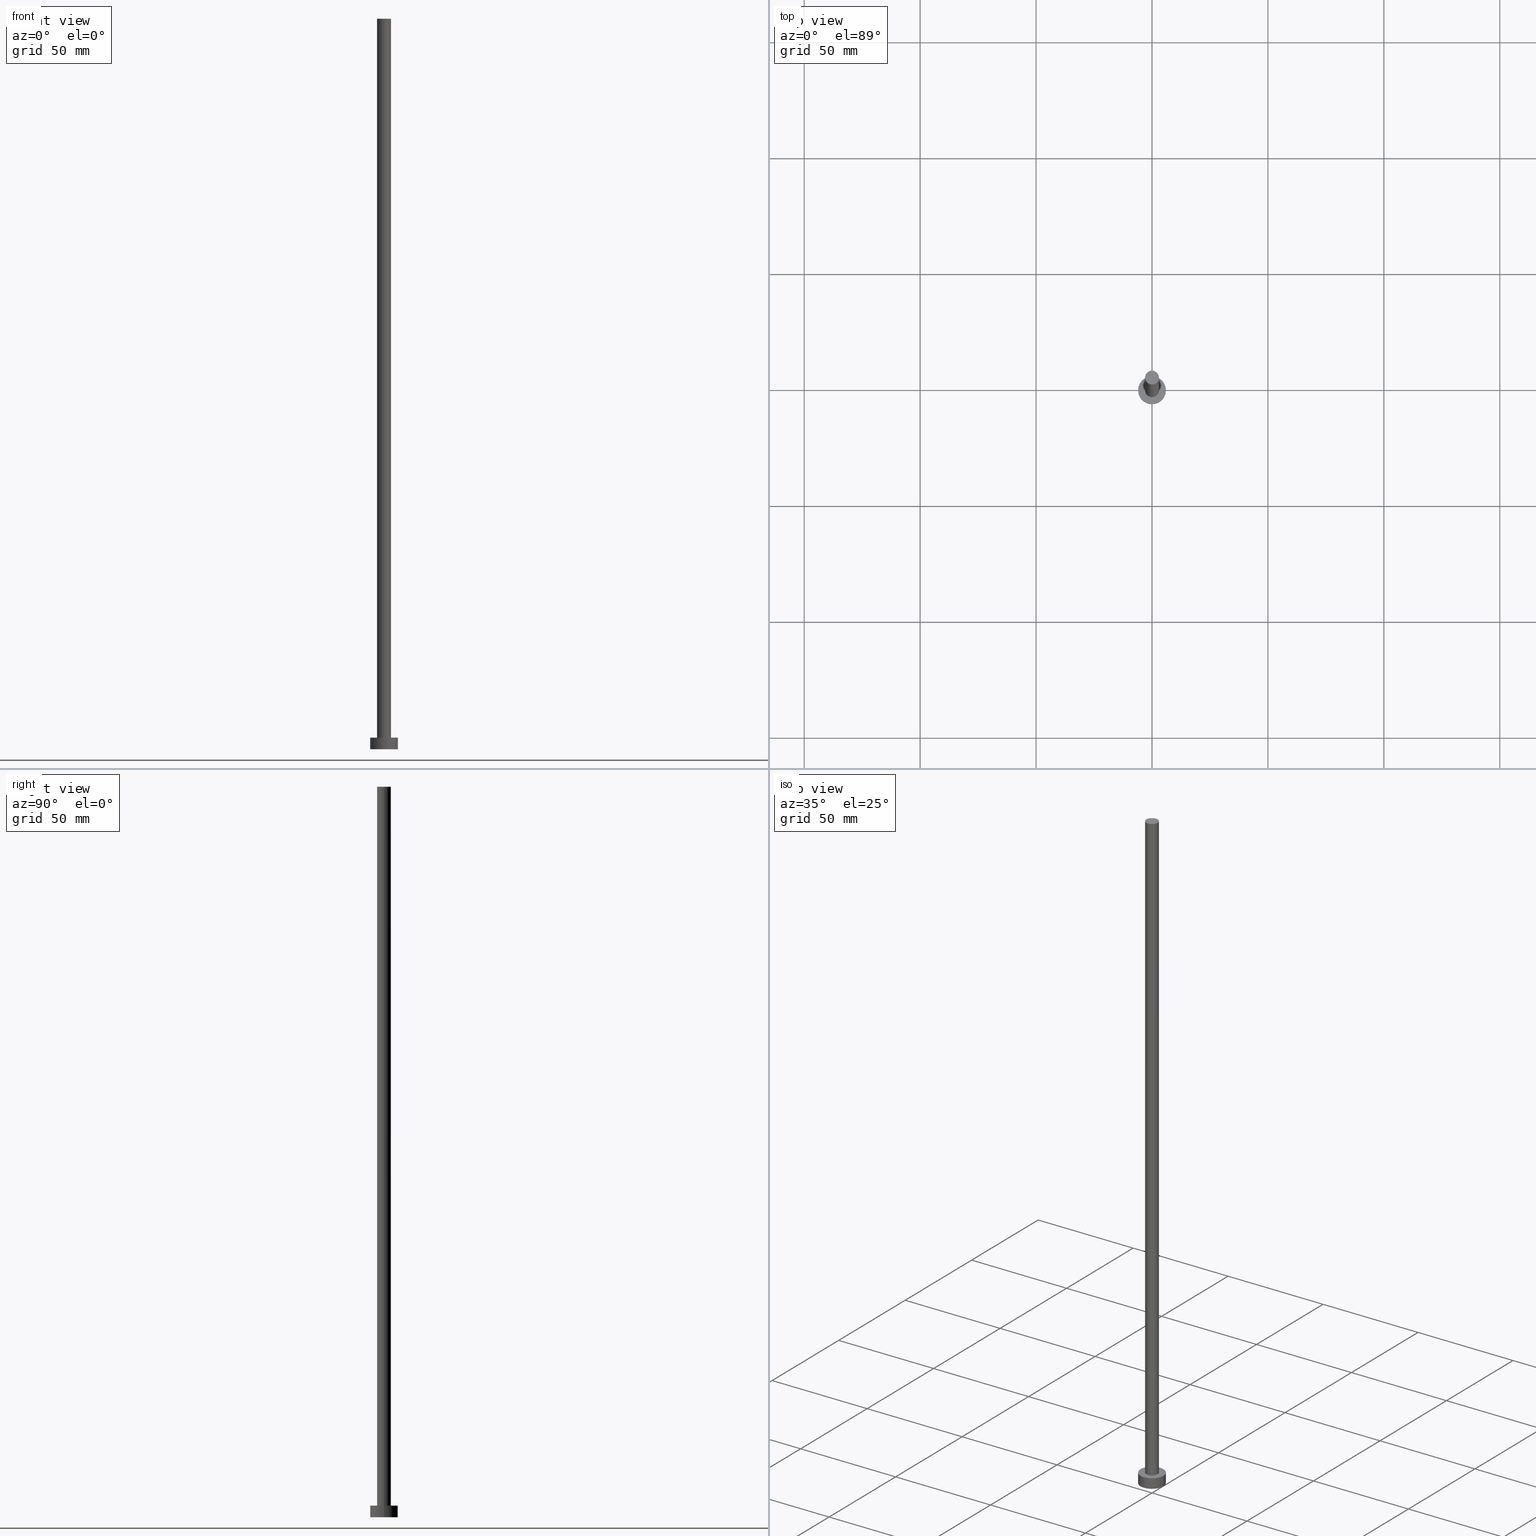
[diagram: canonical four-view strip — front | top / right | iso, engineering-drawing reading convention]
A machine part, canonical four-view strip (front | top / right | iso — engineering-drawing reading convention). The complete STEP part file that produces these views, byte-faithful:
ISO-10303-21;
HEADER;
FILE_DESCRIPTION (( 'STEP AP203' ),
    '1' );
FILE_NAME ('14d9.STEP',
    '2023-02-13T12:37:28',
    ( '' ),
    ( '' ),
    'SwSTEP 2.0',
    'SolidWorks 2019',
    '' );
FILE_SCHEMA (( 'CONFIG_CONTROL_DESIGN' ));
ENDSEC;

DATA;
#1 = ORIENTED_EDGE ( 'NONE', *, *, #44, .T. ) ;
#2 =( LENGTH_UNIT ( ) NAMED_UNIT ( * ) SI_UNIT ( .MILLI., .METRE. ) );
#3 = ORIENTED_EDGE ( 'NONE', *, *, #17, .T. ) ;
#4 = CIRCLE ( 'NONE', #82, 6.000000000000000888 ) ;
#5 = APPLICATION_CONTEXT ( 'configuration controlled 3d designs of mechanical parts and assemblies' ) ;
#6 = APPROVAL_DATE_TIME ( #27, #111 ) ;
#7 = CARTESIAN_POINT ( 'NONE',  ( -3.000000000000000444, 0.000000000000000000, 5.000000000000000000 ) ) ;
#8 = EDGE_CURVE ( 'NONE', #16, #132, #191, .T. ) ;
#9 = CC_DESIGN_APPROVAL ( #111, ( #60 ) ) ;
#10 = DIRECTION ( 'NONE',  ( 1.000000000000000000, 0.000000000000000000, 0.000000000000000000 ) ) ;
#11 = FACE_OUTER_BOUND ( 'NONE', #24, .T. ) ;
#12 = APPROVAL_DATE_TIME ( #176, #177 ) ;
#13 = APPROVAL_PERSON_ORGANIZATION ( #214, #111, #246 ) ;
#14 = EDGE_CURVE ( 'NONE', #224, #223, #4, .T. ) ;
#15 = LINE ( 'NONE', #49, #185 ) ;
#16 = VERTEX_POINT ( 'NONE', #87 ) ;
#17 = EDGE_CURVE ( 'NONE', #57, #223, #46, .T. ) ;
#18 = ORIENTED_EDGE ( 'NONE', *, *, #17, .F. ) ;
#19 = APPROVAL_ROLE ( '' ) ;
#20 = ORIENTED_EDGE ( 'NONE', *, *, #83, .T. ) ;
#21 = ORIENTED_EDGE ( 'NONE', *, *, #150, .T. ) ;
#22 = AXIS2_PLACEMENT_3D ( 'NONE', #253, #39, #77 ) ;
#23 = ADVANCED_FACE ( 'NONE', ( #241 ), #153, .F. ) ;
#24 = EDGE_LOOP ( 'NONE', ( #78, #20, #1, #208 ) ) ;
#25 = ORIENTED_EDGE ( 'NONE', *, *, #14, .T. ) ;
#26 = DIRECTION ( 'NONE',  ( 0.000000000000000000, 0.000000000000000000, 1.000000000000000000 ) ) ;
#27 = DATE_AND_TIME ( #229, #89 ) ;
#28 = DIRECTION ( 'NONE',  ( 0.000000000000000000, 0.000000000000000000, 1.000000000000000000 ) ) ;
#29 = CARTESIAN_POINT ( 'NONE',  ( 0.000000000000000000, 0.000000000000000000, 5.000000000000000000 ) ) ;
#30 = CARTESIAN_POINT ( 'NONE',  ( 3.000000000000000444, 3.673940397442060361E-16, 5.000000000000000000 ) ) ;
#31 = ADVANCED_FACE ( 'NONE', ( #155 ), #117, .T. ) ;
#32 = VECTOR ( 'NONE', #45, 1000.000000000000000 ) ;
#33 = CARTESIAN_POINT ( 'NONE',  ( 0.000000000000000000, 0.000000000000000000, 315.0000000000000000 ) ) ;
#34 = APPROVAL_DATE_TIME ( #188, #211 ) ;
#35 = PERSON_AND_ORGANIZATION_ROLE ( 'classification_officer' ) ;
#36 = DIRECTION ( 'NONE',  ( 0.000000000000000000, 0.000000000000000000, 1.000000000000000000 ) ) ;
#37 = CIRCLE ( 'NONE', #195, 3.000000000000000444 ) ;
#38 = COORDINATED_UNIVERSAL_TIME_OFFSET ( 1, 0, .AHEAD. ) ;
#39 = DIRECTION ( 'NONE',  ( -0.000000000000000000, -0.000000000000000000, -1.000000000000000000 ) ) ;
#40 = PRODUCT_RELATED_PRODUCT_CATEGORY ( 'detail', '', ( #116 ) ) ;
#41 = MECHANICAL_CONTEXT ( 'NONE', #5, 'mechanical' ) ;
#42 = SECURITY_CLASSIFICATION ( '', '', #184 ) ;
#43 = DIRECTION ( 'NONE',  ( 1.000000000000000000, 0.000000000000000000, -0.000000000000000000 ) ) ;
#44 = EDGE_CURVE ( 'NONE', #55, #132, #37, .T. ) ;
#45 = DIRECTION ( 'NONE',  ( -0.000000000000000000, -0.000000000000000000, -1.000000000000000000 ) ) ;
#46 = LINE ( 'NONE', #137, #58 ) ;
#47 = DIRECTION ( 'NONE',  ( -1.000000000000000000, 0.000000000000000000, 0.000000000000000000 ) ) ;
#48 = PERSON_AND_ORGANIZATION ( #90, #115 ) ;
#49 = CARTESIAN_POINT ( 'NONE',  ( 6.000000000000000888, 7.347880794884120722E-16, 5.000000000000000000 ) ) ;
#50 = DATE_TIME_ROLE ( 'creation_date' ) ;
#51 = CARTESIAN_POINT ( 'NONE',  ( 0.000000000000000000, 0.000000000000000000, 5.000000000000000000 ) ) ;
#52 = CARTESIAN_POINT ( 'NONE',  ( 0.000000000000000000, 0.000000000000000000, 315.0000000000000000 ) ) ;
#53 = DIRECTION ( 'NONE',  ( 1.000000000000000000, 0.000000000000000000, 0.000000000000000000 ) ) ;
#54 = CC_DESIGN_APPROVAL ( #177, ( #154 ) ) ;
#55 = VERTEX_POINT ( 'NONE', #30 ) ;
#56 = CARTESIAN_POINT ( 'NONE',  ( 6.000000000000000888, 7.347880794884120722E-16, 5.000000000000000000 ) ) ;
#57 = VERTEX_POINT ( 'NONE', #126 ) ;
#58 = VECTOR ( 'NONE', #212, 1000.000000000000000 ) ;
#59 = APPLICATION_PROTOCOL_DEFINITION ( 'international standard', 'config_control_design', 1994, #5 ) ;
#60 = PRODUCT_DEFINITION ( 'NEZN�M�', '', #154, #202 ) ;
#61 = ORIENTED_EDGE ( 'NONE', *, *, #128, .F. ) ;
#62 = ADVANCED_FACE ( 'NONE', ( #124 ), #218, .T. ) ;
#63 = AXIS2_PLACEMENT_3D ( 'NONE', #52, #36, #181 ) ;
#64 = MANIFOLD_SOLID_BREP ( 'P�idat vysunut�m3', #96 ) ;
#65 = AXIS2_PLACEMENT_3D ( 'NONE', #139, #91, #43 ) ;
#66 = DIRECTION ( 'NONE',  ( 1.000000000000000000, 0.000000000000000000, 0.000000000000000000 ) ) ;
#67 = CC_DESIGN_DATE_AND_TIME_ASSIGNMENT ( #148, #206, ( #42 ) ) ;
#68 = COORDINATED_UNIVERSAL_TIME_OFFSET ( 1, 0, .AHEAD. ) ;
#69 = PLANE ( 'NONE',  #118 ) ;
#70 = DIRECTION ( 'NONE',  ( 1.000000000000000000, 0.000000000000000000, 0.000000000000000000 ) ) ;
#71 = CIRCLE ( 'NONE', #221, 3.000000000000000444 ) ;
#72 = FACE_OUTER_BOUND ( 'NONE', #113, .T. ) ;
#73 = AXIS2_PLACEMENT_3D ( 'NONE', #196, #76, #216 ) ;
#74 = PERSON_AND_ORGANIZATION ( #90, #115 ) ;
#75 = PERSON_AND_ORGANIZATION ( #90, #115 ) ;
#76 = DIRECTION ( 'NONE',  ( 0.000000000000000000, 0.000000000000000000, 1.000000000000000000 ) ) ;
#77 = DIRECTION ( 'NONE',  ( -1.000000000000000000, 0.000000000000000000, 0.000000000000000000 ) ) ;
#78 = ORIENTED_EDGE ( 'NONE', *, *, #235, .F. ) ;
#79 = ORIENTED_EDGE ( 'NONE', *, *, #182, .F. ) ;
#80 = PRODUCT_DEFINITION_SHAPE ( 'NONE', 'NONE',  #60 ) ;
#81 = SHAPE_DEFINITION_REPRESENTATION ( #80, #243 ) ;
#82 = AXIS2_PLACEMENT_3D ( 'NONE', #193, #247, #66 ) ;
#83 = EDGE_CURVE ( 'NONE', #110, #55, #179, .T. ) ;
#84 = LOCAL_TIME ( 13, 37, 28.00000000000000000, #133 ) ;
#85 = ORIENTED_EDGE ( 'NONE', *, *, #235, .T. ) ;
#86 = PERSON_AND_ORGANIZATION_ROLE ( 'design_owner' ) ;
#87 = CARTESIAN_POINT ( 'NONE',  ( -3.000000000000000444, 0.000000000000000000, 315.0000000000000000 ) ) ;
#88 = AXIS2_PLACEMENT_3D ( 'NONE', #120, #162, #160 ) ;
#89 = LOCAL_TIME ( 13, 37, 28.00000000000000000, #99 ) ;
#90 = PERSON ( 'NEUR�EN�', 'NEUR�EN�', 'NEUR�EN�', ('NEUR�EN�'), ('NEUR�EN�'), ('NEUR�EN�') ) ;
#91 = DIRECTION ( 'NONE',  ( 0.000000000000000000, 0.000000000000000000, 1.000000000000000000 ) ) ;
#92 = CARTESIAN_POINT ( 'NONE',  ( 0.000000000000000000, 0.000000000000000000, 315.0000000000000000 ) ) ;
#93 = APPLICATION_CONTEXT ( 'configuration controlled 3d designs of mechanical parts and assemblies' ) ;
#94 = EDGE_CURVE ( 'NONE', #132, #55, #71, .T. ) ;
#95 = CARTESIAN_POINT ( 'NONE',  ( -3.000000000000000444, 0.000000000000000000, 315.0000000000000000 ) ) ;
#96 = CLOSED_SHELL ( 'NONE', ( #156, #240, #62, #101, #23, #31, #203 ) ) ;
#97 = LOCAL_TIME ( 13, 37, 28.00000000000000000, #68 ) ;
#98 = DIRECTION ( 'NONE',  ( -0.000000000000000000, -0.000000000000000000, -1.000000000000000000 ) ) ;
#99 = COORDINATED_UNIVERSAL_TIME_OFFSET ( 1, 0, .AHEAD. ) ;
#100 = CARTESIAN_POINT ( 'NONE',  ( -6.000000000000000888, 0.000000000000000000, 0.000000000000000000 ) ) ;
#101 = ADVANCED_FACE ( 'NONE', ( #158, #142 ), #69, .T. ) ;
#102 = CYLINDRICAL_SURFACE ( 'NONE', #119, 3.000000000000000444 ) ;
#103 = CIRCLE ( 'NONE', #239, 6.000000000000000888 ) ;
#104 = AXIS2_PLACEMENT_3D ( 'NONE', #144, #252, #220 ) ;
#105 = DIRECTION ( 'NONE',  ( -0.000000000000000000, -0.000000000000000000, -1.000000000000000000 ) ) ;
#106 = CC_DESIGN_DATE_AND_TIME_ASSIGNMENT ( #123, #50, ( #60 ) ) ;
#107 = EDGE_LOOP ( 'NONE', ( #109, #170 ) ) ;
#108 = ORIENTED_EDGE ( 'NONE', *, *, #130, .T. ) ;
#109 = ORIENTED_EDGE ( 'NONE', *, *, #222, .F. ) ;
#110 = VERTEX_POINT ( 'NONE', #161 ) ;
#111 = APPROVAL ( #141, 'NEUR�EN�' ) ;
#112 = CALENDAR_DATE ( 2023, 13, 2 ) ;
#113 = EDGE_LOOP ( 'NONE', ( #21, #85 ) ) ;
#114 = ORIENTED_EDGE ( 'NONE', *, *, #130, .F. ) ;
#115 = ORGANIZATION ( 'NEUR�EN�', 'NEUR�EN�', '' ) ;
#116 = PRODUCT ( '14d9', '14d9', '', ( #41 ) ) ;
#117 = CYLINDRICAL_SURFACE ( 'NONE', #145, 3.000000000000000444 ) ;
#118 = AXIS2_PLACEMENT_3D ( 'NONE', #29, #173, #178 ) ;
#119 = AXIS2_PLACEMENT_3D ( 'NONE', #33, #98, #250 ) ;
#120 = CARTESIAN_POINT ( 'NONE',  ( 0.000000000000000000, 0.000000000000000000, 5.000000000000000000 ) ) ;
#121 = DIRECTION ( 'NONE',  ( -0.000000000000000000, -0.000000000000000000, -1.000000000000000000 ) ) ;
#122 = CARTESIAN_POINT ( 'NONE',  ( 0.000000000000000000, 0.000000000000000000, 5.000000000000000000 ) ) ;
#123 = DATE_AND_TIME ( #157, #97 ) ;
#124 = FACE_OUTER_BOUND ( 'NONE', #205, .T. ) ;
#125 = UNCERTAINTY_MEASURE_WITH_UNIT (LENGTH_MEASURE( 1.000000000000000082E-05 ), #2, 'distance_accuracy_value', 'NONE');
#126 = CARTESIAN_POINT ( 'NONE',  ( -6.000000000000000888, 0.000000000000000000, 5.000000000000000000 ) ) ;
#127 = APPROVAL_PERSON_ORGANIZATION ( #140, #177, #159 ) ;
#128 = EDGE_CURVE ( 'NONE', #237, #57, #249, .T. ) ;
#129 = CYLINDRICAL_SURFACE ( 'NONE', #22, 6.000000000000000888 ) ;
#130 = EDGE_CURVE ( 'NONE', #57, #237, #103, .T. ) ;
#131 = CALENDAR_DATE ( 2023, 13, 2 ) ;
#132 = VERTEX_POINT ( 'NONE', #7 ) ;
#133 = COORDINATED_UNIVERSAL_TIME_OFFSET ( 1, 0, .AHEAD. ) ;
#134 = DIRECTION ( 'NONE',  ( 1.000000000000000000, 0.000000000000000000, 0.000000000000000000 ) ) ;
#135 = LOCAL_TIME ( 13, 37, 28.00000000000000000, #217 ) ;
#136 = ORIENTED_EDGE ( 'NONE', *, *, #83, .F. ) ;
#137 = CARTESIAN_POINT ( 'NONE',  ( -6.000000000000000888, 0.000000000000000000, 5.000000000000000000 ) ) ;
#138 = LOCAL_TIME ( 13, 37, 28.00000000000000000, #38 ) ;
#139 = CARTESIAN_POINT ( 'NONE',  ( 0.000000000000000000, 0.000000000000000000, 0.000000000000000000 ) ) ;
#140 = PERSON_AND_ORGANIZATION ( #90, #115 ) ;
#141 = APPROVAL_STATUS ( 'not_yet_approved' ) ;
#142 = FACE_OUTER_BOUND ( 'NONE', #207, .T. ) ;
#143 = PERSON_AND_ORGANIZATION_ROLE ( 'creator' ) ;
#144 = CARTESIAN_POINT ( 'NONE',  ( 0.000000000000000000, 0.000000000000000000, 315.0000000000000000 ) ) ;
#145 = AXIS2_PLACEMENT_3D ( 'NONE', #92, #227, #47 ) ;
#146 = CC_DESIGN_PERSON_AND_ORGANIZATION_ASSIGNMENT ( #75, #35, ( #42 ) ) ;
#147 = CARTESIAN_POINT ( 'NONE',  ( 0.000000000000000000, 0.000000000000000000, 0.000000000000000000 ) ) ;
#148 = DATE_AND_TIME ( #131, #138 ) ;
#149 = APPROVAL_STATUS ( 'not_yet_approved' ) ;
#150 = EDGE_CURVE ( 'NONE', #16, #110, #151, .T. ) ;
#151 = CIRCLE ( 'NONE', #104, 3.000000000000000444 ) ;
#152 = AXIS2_PLACEMENT_3D ( 'NONE', #147, #26, #134 ) ;
#153 = PLANE ( 'NONE',  #65 ) ;
#154 = PRODUCT_DEFINITION_FORMATION_WITH_SPECIFIED_SOURCE ( 'LIBOVOLN�', '', #116, .NOT_KNOWN. ) ;
#155 = FACE_OUTER_BOUND ( 'NONE', #167, .T. ) ;
#156 = ADVANCED_FACE ( 'NONE', ( #11 ), #102, .T. ) ;
#157 = CALENDAR_DATE ( 2023, 13, 2 ) ;
#158 = FACE_BOUND ( 'NONE', #172, .T. ) ;
#159 = APPROVAL_ROLE ( '' ) ;
#160 = DIRECTION ( 'NONE',  ( -1.000000000000000000, 0.000000000000000000, 0.000000000000000000 ) ) ;
#161 = CARTESIAN_POINT ( 'NONE',  ( 3.000000000000000444, 3.673940397442060361E-16, 315.0000000000000000 ) ) ;
#162 = DIRECTION ( 'NONE',  ( -0.000000000000000000, -0.000000000000000000, -1.000000000000000000 ) ) ;
#163 = PERSON_AND_ORGANIZATION ( #90, #115 ) ;
#164 = DIRECTION ( 'NONE',  ( 0.000000000000000000, 0.000000000000000000, 1.000000000000000000 ) ) ;
#165 = PERSON_AND_ORGANIZATION_ROLE ( 'design_supplier' ) ;
#166 =( NAMED_UNIT ( * ) PLANE_ANGLE_UNIT ( ) SI_UNIT ( $, .RADIAN. ) );
#167 = EDGE_LOOP ( 'NONE', ( #136, #254, #242, #169 ) ) ;
#168 =( NAMED_UNIT ( * ) SI_UNIT ( $, .STERADIAN. ) SOLID_ANGLE_UNIT ( ) );
#169 = ORIENTED_EDGE ( 'NONE', *, *, #94, .T. ) ;
#170 = ORIENTED_EDGE ( 'NONE', *, *, #14, .F. ) ;
#171 = CC_DESIGN_SECURITY_CLASSIFICATION ( #42, ( #154 ) ) ;
#172 = EDGE_LOOP ( 'NONE', ( #244, #183 ) ) ;
#173 = DIRECTION ( 'NONE',  ( 0.000000000000000000, 0.000000000000000000, 1.000000000000000000 ) ) ;
#174 = APPROVAL_STATUS ( 'not_yet_approved' ) ;
#175 = CARTESIAN_POINT ( 'NONE',  ( 6.000000000000000888, 7.347880794884120722E-16, 0.000000000000000000 ) ) ;
#176 = DATE_AND_TIME ( #198, #135 ) ;
#177 = APPROVAL ( #174, 'NEUR�EN�' ) ;
#178 = DIRECTION ( 'NONE',  ( 1.000000000000000000, 0.000000000000000000, -0.000000000000000000 ) ) ;
#179 = LINE ( 'NONE', #248, #192 ) ;
#180 = PERSON_AND_ORGANIZATION ( #90, #115 ) ;
#181 = DIRECTION ( 'NONE',  ( 1.000000000000000000, 0.000000000000000000, 0.000000000000000000 ) ) ;
#182 = EDGE_CURVE ( 'NONE', #237, #224, #15, .T. ) ;
#183 = ORIENTED_EDGE ( 'NONE', *, *, #44, .F. ) ;
#184 = SECURITY_CLASSIFICATION_LEVEL ( 'unclassified' ) ;
#185 = VECTOR ( 'NONE', #105, 1000.000000000000000 ) ;
#186 = ORIENTED_EDGE ( 'NONE', *, *, #182, .T. ) ;
#187 = ORIENTED_EDGE ( 'NONE', *, *, #128, .T. ) ;
#188 = DATE_AND_TIME ( #112, #84 ) ;
#189 = CC_DESIGN_PERSON_AND_ORGANIZATION_ASSIGNMENT ( #74, #143, ( #154 ) ) ;
#190 = PERSON_AND_ORGANIZATION ( #90, #115 ) ;
#191 = LINE ( 'NONE', #95, #32 ) ;
#192 = VECTOR ( 'NONE', #121, 1000.000000000000000 ) ;
#193 = CARTESIAN_POINT ( 'NONE',  ( 0.000000000000000000, 0.000000000000000000, 0.000000000000000000 ) ) ;
#194 =( GEOMETRIC_REPRESENTATION_CONTEXT ( 3 ) GLOBAL_UNCERTAINTY_ASSIGNED_CONTEXT ( ( #125 ) ) GLOBAL_UNIT_ASSIGNED_CONTEXT ( ( #2, #166, #168 ) ) REPRESENTATION_CONTEXT ( 'NONE', 'WORKASPACE' ) );
#195 = AXIS2_PLACEMENT_3D ( 'NONE', #51, #231, #215 ) ;
#196 = CARTESIAN_POINT ( 'NONE',  ( 0.000000000000000000, 0.000000000000000000, 315.0000000000000000 ) ) ;
#197 = CARTESIAN_POINT ( 'NONE',  ( 0.000000000000000000, 0.000000000000000000, 0.000000000000000000 ) ) ;
#198 = CALENDAR_DATE ( 2023, 13, 2 ) ;
#199 = DIRECTION ( 'NONE',  ( 1.000000000000000000, 0.000000000000000000, 0.000000000000000000 ) ) ;
#200 = CARTESIAN_POINT ( 'NONE',  ( 0.000000000000000000, 0.000000000000000000, 5.000000000000000000 ) ) ;
#201 = CIRCLE ( 'NONE', #63, 3.000000000000000444 ) ;
#202 = DESIGN_CONTEXT ( 'detailed design', #93, 'design' ) ;
#203 = ADVANCED_FACE ( 'NONE', ( #72 ), #251, .T. ) ;
#204 = FACE_OUTER_BOUND ( 'NONE', #209, .T. ) ;
#205 = EDGE_LOOP ( 'NONE', ( #79, #114, #3, #255 ) ) ;
#206 = DATE_TIME_ROLE ( 'classification_date' ) ;
#207 = EDGE_LOOP ( 'NONE', ( #108, #187 ) ) ;
#208 = ORIENTED_EDGE ( 'NONE', *, *, #8, .F. ) ;
#209 = EDGE_LOOP ( 'NONE', ( #61, #186, #25, #18 ) ) ;
#210 = AXIS2_PLACEMENT_3D ( 'NONE', #197, #233, #10 ) ;
#211 = APPROVAL ( #149, 'NEUR�EN�' ) ;
#212 = DIRECTION ( 'NONE',  ( -0.000000000000000000, -0.000000000000000000, -1.000000000000000000 ) ) ;
#213 = AXIS2_PLACEMENT_3D ( 'NONE', #122, #228, #70 ) ;
#214 = PERSON_AND_ORGANIZATION ( #90, #115 ) ;
#215 = DIRECTION ( 'NONE',  ( 1.000000000000000000, 0.000000000000000000, 0.000000000000000000 ) ) ;
#216 = DIRECTION ( 'NONE',  ( 1.000000000000000000, 0.000000000000000000, -0.000000000000000000 ) ) ;
#217 = COORDINATED_UNIVERSAL_TIME_OFFSET ( 1, 0, .AHEAD. ) ;
#218 = CYLINDRICAL_SURFACE ( 'NONE', #88, 6.000000000000000888 ) ;
#219 = CARTESIAN_POINT ( 'NONE',  ( 0.000000000000000000, 0.000000000000000000, 5.000000000000000000 ) ) ;
#220 = DIRECTION ( 'NONE',  ( 1.000000000000000000, 0.000000000000000000, 0.000000000000000000 ) ) ;
#221 = AXIS2_PLACEMENT_3D ( 'NONE', #219, #28, #199 ) ;
#222 = EDGE_CURVE ( 'NONE', #223, #224, #236, .T. ) ;
#223 = VERTEX_POINT ( 'NONE', #100 ) ;
#224 = VERTEX_POINT ( 'NONE', #175 ) ;
#225 = CC_DESIGN_APPROVAL ( #211, ( #42 ) ) ;
#226 = CC_DESIGN_PERSON_AND_ORGANIZATION_ASSIGNMENT ( #163, #165, ( #154 ) ) ;
#227 = DIRECTION ( 'NONE',  ( -0.000000000000000000, -0.000000000000000000, -1.000000000000000000 ) ) ;
#228 = DIRECTION ( 'NONE',  ( 0.000000000000000000, 0.000000000000000000, 1.000000000000000000 ) ) ;
#229 = CALENDAR_DATE ( 2023, 13, 2 ) ;
#230 = CC_DESIGN_PERSON_AND_ORGANIZATION_ASSIGNMENT ( #190, #86, ( #116 ) ) ;
#231 = DIRECTION ( 'NONE',  ( 0.000000000000000000, 0.000000000000000000, 1.000000000000000000 ) ) ;
#232 = APPROVAL_PERSON_ORGANIZATION ( #180, #211, #19 ) ;
#233 = DIRECTION ( 'NONE',  ( 0.000000000000000000, 0.000000000000000000, 1.000000000000000000 ) ) ;
#234 = PERSON_AND_ORGANIZATION_ROLE ( 'creator' ) ;
#235 = EDGE_CURVE ( 'NONE', #110, #16, #201, .T. ) ;
#236 = CIRCLE ( 'NONE', #210, 6.000000000000000888 ) ;
#237 = VERTEX_POINT ( 'NONE', #56 ) ;
#238 = CC_DESIGN_PERSON_AND_ORGANIZATION_ASSIGNMENT ( #48, #234, ( #60 ) ) ;
#239 = AXIS2_PLACEMENT_3D ( 'NONE', #200, #164, #53 ) ;
#240 = ADVANCED_FACE ( 'NONE', ( #204 ), #129, .T. ) ;
#241 = FACE_OUTER_BOUND ( 'NONE', #107, .T. ) ;
#242 = ORIENTED_EDGE ( 'NONE', *, *, #8, .T. ) ;
#243 = ADVANCED_BREP_SHAPE_REPRESENTATION ( '14d9', ( #64, #152 ), #194 ) ;
#244 = ORIENTED_EDGE ( 'NONE', *, *, #94, .F. ) ;
#245 = APPLICATION_PROTOCOL_DEFINITION ( 'international standard', 'config_control_design', 1994, #93 ) ;
#246 = APPROVAL_ROLE ( '' ) ;
#247 = DIRECTION ( 'NONE',  ( 0.000000000000000000, 0.000000000000000000, 1.000000000000000000 ) ) ;
#248 = CARTESIAN_POINT ( 'NONE',  ( 3.000000000000000444, 3.673940397442060361E-16, 315.0000000000000000 ) ) ;
#249 = CIRCLE ( 'NONE', #213, 6.000000000000000888 ) ;
#250 = DIRECTION ( 'NONE',  ( -1.000000000000000000, 0.000000000000000000, 0.000000000000000000 ) ) ;
#251 = PLANE ( 'NONE',  #73 ) ;
#252 = DIRECTION ( 'NONE',  ( 0.000000000000000000, 0.000000000000000000, 1.000000000000000000 ) ) ;
#253 = CARTESIAN_POINT ( 'NONE',  ( 0.000000000000000000, 0.000000000000000000, 5.000000000000000000 ) ) ;
#254 = ORIENTED_EDGE ( 'NONE', *, *, #150, .F. ) ;
#255 = ORIENTED_EDGE ( 'NONE', *, *, #222, .T. ) ;
ENDSEC;
END-ISO-10303-21;
